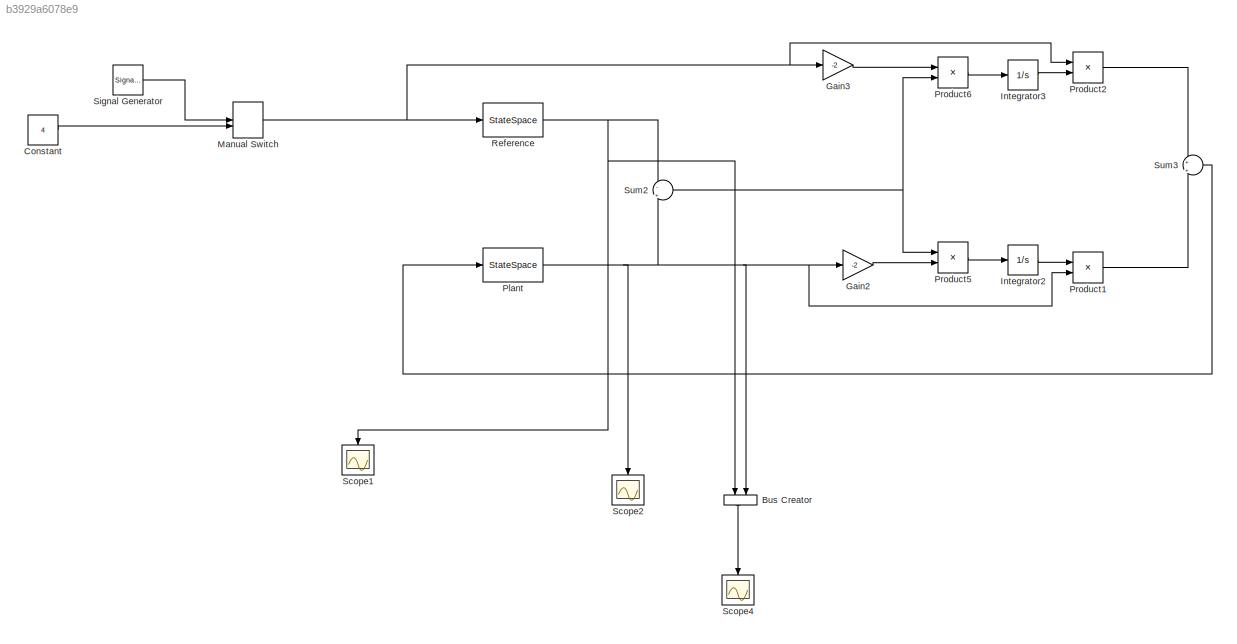
MODEL slx_b3929a6078e9
KIND model
CONFIG AbsTol = auto
CONFIG FixedStep = .01
CONFIG MaxStep = auto
CONFIG MinStep = auto
CONFIG RelTol = 1e-3
CONFIG SampleTimeConstraint = Unconstrained
CONFIG Solver = ode3
CONFIG SolverMode = Auto
CONFIG SolverName = ode3
CONFIG StartTime = 0.0
CONFIG StopTime = 10
BLOCK [BusCreator] Bus Creator
  DisplayOption = bar
  Inputs = 2
  Ports = [2, 1]
BLOCK [Constant] Constant
  Value = 4
BLOCK [Gain] Gain2
  Gain = -2
  OutDataTypeStr = Inherit: Inherit via internal rule
  ParamDataTypeStr = Inherit: Inherit via internal rule
  SaturateOnIntegerOverflow = off
BLOCK [Gain] Gain3
  Gain = -2
  OutDataTypeStr = Inherit: Inherit via internal rule
  ParamDataTypeStr = Inherit: Inherit via internal rule
  SaturateOnIntegerOverflow = off
BLOCK [Integrator] Integrator2
  Ports = [1, 1]
BLOCK [Integrator] Integrator3
  Ports = [1, 1]
BLOCK [ManualSwitch] Manual Switch
BLOCK [StateSpace] Plant 
  B = 3
  D = 0
  Ports = [1, 1]
  X0 = 0
BLOCK [Product] Product1
  InputSameDT = off
  OutDataTypeStr = Inherit: Inherit via internal rule
  Ports = [2, 1]
  RndMeth = Floor
  SaturateOnIntegerOverflow = off
BLOCK [Product] Product2
  InputSameDT = off
  OutDataTypeStr = Inherit: Inherit via internal rule
  Ports = [2, 1]
  RndMeth = Floor
  SaturateOnIntegerOverflow = off
BLOCK [Product] Product5
  InputSameDT = off
  OutDataTypeStr = Inherit: Inherit via internal rule
  Ports = [2, 1]
  RndMeth = Floor
  SaturateOnIntegerOverflow = off
BLOCK [Product] Product6
  InputSameDT = off
  OutDataTypeStr = Inherit: Inherit via internal rule
  Ports = [2, 1]
  RndMeth = Floor
  SaturateOnIntegerOverflow = off
BLOCK [StateSpace] Reference 
  A = -4
  B = 4
  D = 0
  Ports = [1, 1]
  X0 = 0
BLOCK [Scope] Scope1
  Floating = off
  NumInputPorts = 1
  Ports = [1]
  YMax = 1
  YMin = -1
BLOCK [Scope] Scope2
  Floating = off
  NumInputPorts = 1
  Ports = [1]
  SaveName = ScopeData1
  YMax = 1
  YMin = -1
BLOCK [Scope] Scope4
  Floating = off
  NumInputPorts = 1
  Ports = [1]
  SaveName = ScopeData4
  YMax = 1
  YMin = -1
BLOCK [SignalGenerator] Signal Generator
  Amplitude = 4
  Frequency = 3
  Ports = [0, 1]
  Units = rad/sec
BLOCK [Sum] Sum2
  IconShape = round
  InputSameDT = off
  Inputs = -|+
  OutDataTypeStr = Inherit: Inherit via internal rule
  Ports = [2, 1]
  SaturateOnIntegerOverflow = off
BLOCK [Sum] Sum3
  IconShape = round
  InputSameDT = off
  Inputs = +|+
  OutDataTypeStr = Inherit: Inherit via internal rule
  Ports = [2, 1]
  SaturateOnIntegerOverflow = off
LINE Bus Creator:1 -> Scope4:1
LINE Constant:1 -> Manual Switch:2
LINE Gain2:1 -> Product5:2
LINE Gain3:1 -> Product6:1
LINE Integrator2:1 -> Product1:1
LINE Integrator3:1 -> Product2:2
NET Manual Switch:1 -> Gain3:1, Product2:1, Reference :1
NET Plant :1 -> Bus Creator:2, Gain2:1, Product1:2, Scope2:1, Sum2:2
LINE Product1:1 -> Sum3:2
LINE Product2:1 -> Sum3:1
LINE Product5:1 -> Integrator2:1
LINE Product6:1 -> Integrator3:1
NET Reference :1 -> Bus Creator:1, Scope1:1, Sum2:1
LINE Signal Generator:1 -> Manual Switch:1
NET Sum2:1 -> Product5:1, Product6:2
LINE Sum3:1 -> Plant :1
note: NET lines group one-source signal fan-out (src -> all destinations, sorted); 1:1 wires keep LINE
